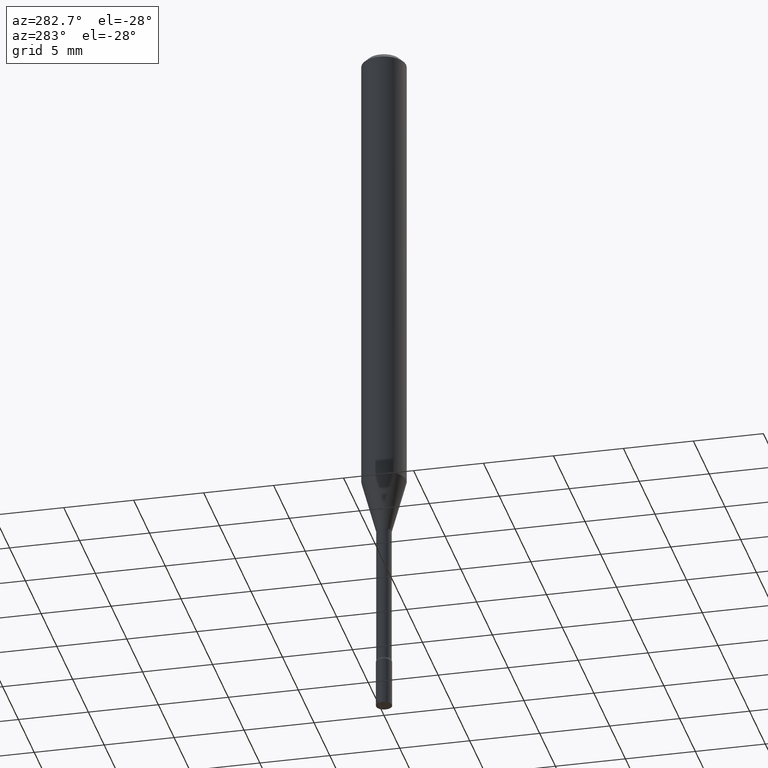
[diagram: clean part render]
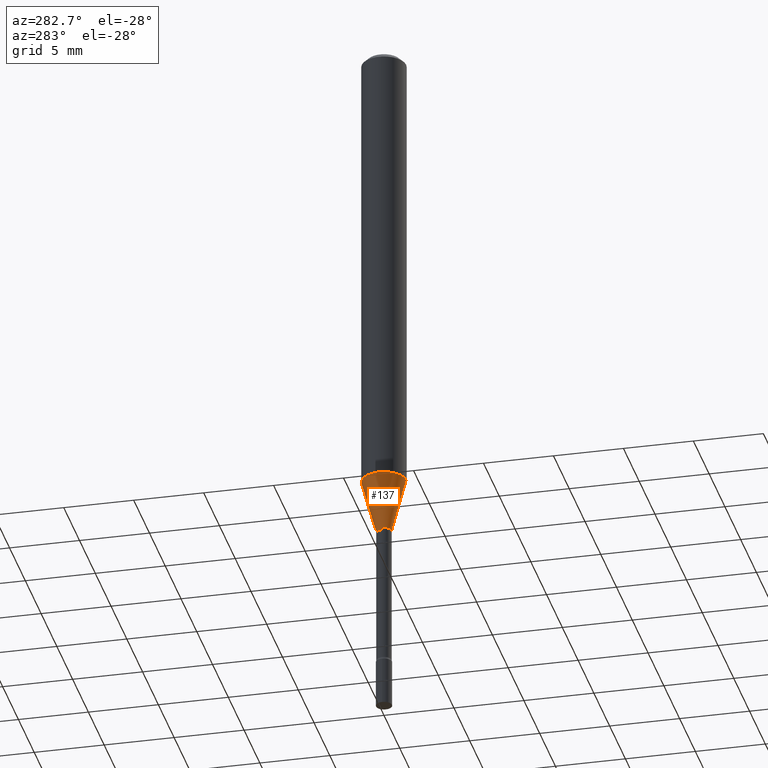
[diagram: same view with one face highlighted and labeled with its STEP entity id]
A machine part, auxiliary view. The second image highlights one B-rep face of the part: STEP entity #137.
In plain terms, the highlighted conical surface has half-angle 15 deg.
Its self-contained STEP definition (entity closure, byte-faithful):
#7 = ORIENTED_EDGE ( 'NONE', *, *, #84, .F. ) ;
#29 = FACE_OUTER_BOUND ( 'NONE', #259, .T. ) ;
#36 = DIRECTION ( 'NONE',  ( -2.445394196737374022E-29, 3.491588183818847574E-15, 1.000000000000000000 ) ) ;
#54 = EDGE_CURVE ( 'NONE', #171, #138, #334, .T. ) ;
#59 = ORIENTED_EDGE ( 'NONE', *, *, #400, .T. ) ;
#84 = EDGE_CURVE ( 'NONE', #249, #138, #317, .T. ) ;
#96 = DIRECTION ( 'NONE',  ( -1.807323732225328562E-15, -0.2588190451025179639, 0.9659258262890689783 ) ) ;
#102 = LINE ( 'NONE', #221, #298 ) ;
#113 = CARTESIAN_POINT ( 'NONE',  ( -4.364351673553598685E-16, -0.06250000000000457967, -1.305679699107026970 ) ) ;
#128 = AXIS2_PLACEMENT_3D ( 'NONE', #194, #229, #385 ) ;
#137 = ADVANCED_FACE ( 'NONE', ( #29 ), #189, .T. ) ;
#138 = VERTEX_POINT ( 'NONE', #113 ) ;
#146 = DIRECTION ( 'NONE',  ( -2.445394196737374022E-29, 3.491588183818847574E-15, 1.000000000000000000 ) ) ;
#171 = VERTEX_POINT ( 'NONE', #312 ) ;
#189 = CONICAL_SURFACE ( 'NONE', #275, 0.02166111260566397703, 0.2617993877991501295 ) ;
#194 = CARTESIAN_POINT ( 'NONE',  ( 3.192901558994125594E-29, -4.558895809254244772E-15, -1.305679699107027414 ) ) ;
#221 = CARTESIAN_POINT ( 'NONE',  ( 1.539114621043963911E-16, 0.02166111260565888735, -1.458092501787273010 ) ) ;
#229 = DIRECTION ( 'NONE',  ( -2.445394196737374022E-29, 3.491588183818847574E-15, 1.000000000000000000 ) ) ;
#249 = VERTEX_POINT ( 'NONE', #404 ) ;
#250 = VERTEX_POINT ( 'NONE', #322 ) ;
#259 = EDGE_LOOP ( 'NONE', ( #486, #59, #452, #7 ) ) ;
#275 = AXIS2_PLACEMENT_3D ( 'NONE', #502, #146, #350 ) ;
#281 = CARTESIAN_POINT ( 'NONE',  ( 3.565610942176876838E-29, -5.091058550155305219E-15, -1.458092501787273010 ) ) ;
#298 = VECTOR ( 'NONE', #337, 39.37007874015747433 ) ;
#312 = CARTESIAN_POINT ( 'NONE',  ( -1.512587408824754200E-16, -0.02166111260566907018, -1.458092501787273010 ) ) ;
#317 = CIRCLE ( 'NONE', #128, 0.06250000000000000000 ) ;
#322 = CARTESIAN_POINT ( 'NONE',  ( 2.990003359772455890E-16, 0.02166111260565888735, -1.458092501787273010 ) ) ;
#334 = LINE ( 'NONE', #455, #446 ) ;
#337 = DIRECTION ( 'NONE',  ( 1.839019923739599526E-15, 0.2588190451025248473, 0.9659258262890673130 ) ) ;
#350 = DIRECTION ( 'NONE',  ( -6.982962677686266711E-15, -1.000000000000000000, 0.000000000000000000 ) ) ;
#353 = DIRECTION ( 'NONE',  ( -6.982962677686266711E-15, -1.000000000000000000, 0.000000000000000000 ) ) ;
#385 = DIRECTION ( 'NONE',  ( -6.982962677686265922E-15, -1.000000000000000000, 4.370956789862821150E-15 ) ) ;
#400 = EDGE_CURVE ( 'NONE', #250, #171, #487, .T. ) ;
#404 = CARTESIAN_POINT ( 'NONE',  ( 4.440892098500943678E-16, 0.06249999999999542033, -1.305679699107027636 ) ) ;
#413 = AXIS2_PLACEMENT_3D ( 'NONE', #281, #36, #353 ) ;
#446 = VECTOR ( 'NONE', #96, 39.37007874015749564 ) ;
#452 = ORIENTED_EDGE ( 'NONE', *, *, #54, .T. ) ;
#455 = CARTESIAN_POINT ( 'NONE',  ( -1.512587408824754200E-16, -0.02166111260566907018, -1.458092501787273010 ) ) ;
#486 = ORIENTED_EDGE ( 'NONE', *, *, #500, .F. ) ;
#487 = CIRCLE ( 'NONE', #413, 0.02166111260566397703 ) ;
#500 = EDGE_CURVE ( 'NONE', #250, #249, #102, .T. ) ;
#502 = CARTESIAN_POINT ( 'NONE',  ( 3.565610942176876838E-29, -5.091058550155305219E-15, -1.458092501787273010 ) ) ;